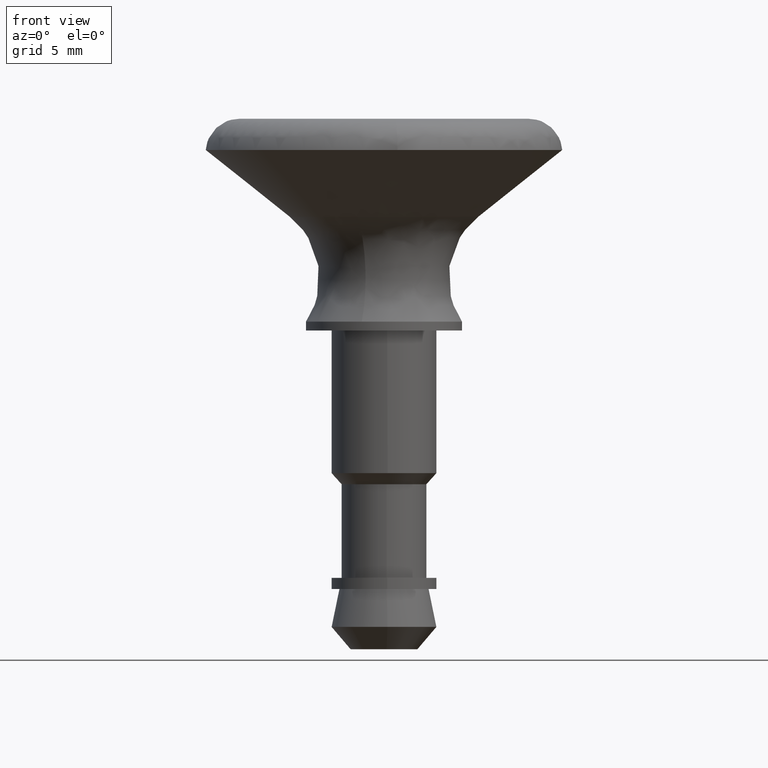
[diagram: clean part render]
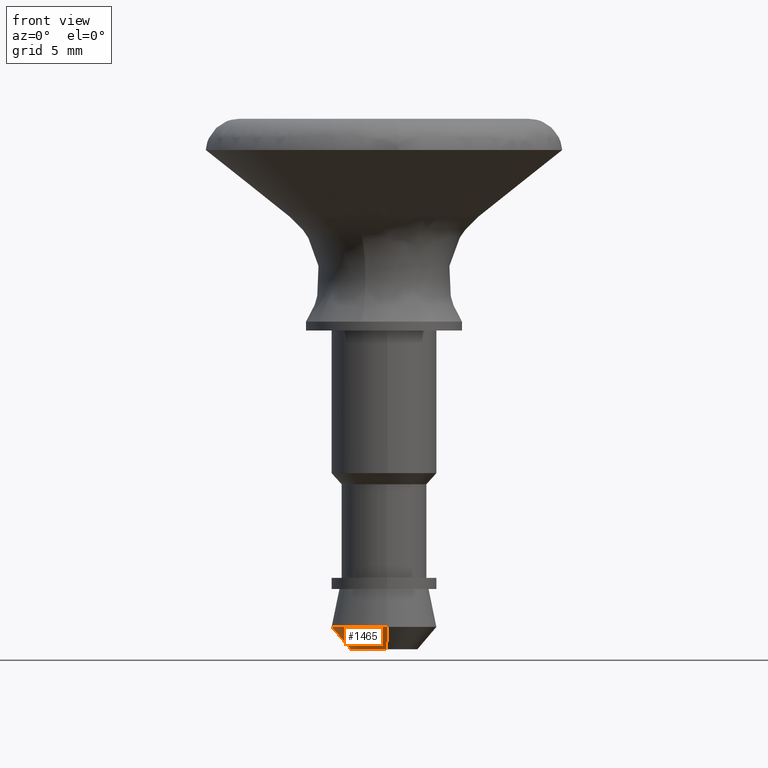
[diagram: same view with one face highlighted and labeled with its STEP entity id]
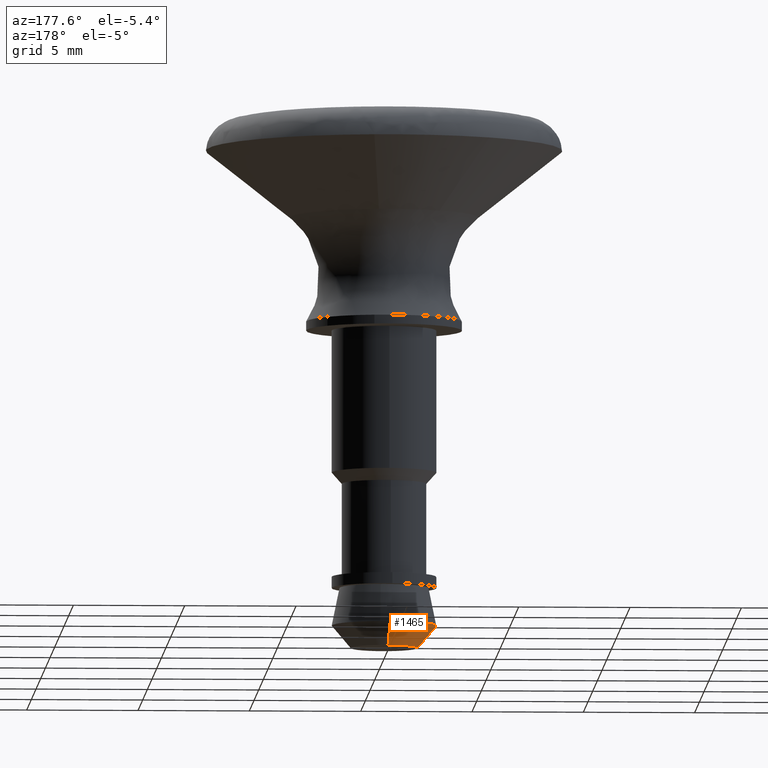
[diagram: same view with one face highlighted and labeled with its STEP entity id]
A machine part, front view. The second image highlights one B-rep face of the part: STEP entity #1465.
A second angle (auxiliary view) of the same face is appended — the face is thin or edge-on in the first view.
In plain terms, the highlighted face is a freeform B-spline surface patch.
Its self-contained STEP definition (entity closure, byte-faithful):
#1266=CARTESIAN_POINT('',(0.153691710792065,-2.344885596485963,-13.299922504303220));
#1267=VERTEX_POINT('',#1266);
#1315=CARTESIAN_POINT('',(-0.184377345202781,2.342736295777161,-13.299905292466701));
#1316=VERTEX_POINT('',#1315);
#1332=CARTESIAN_POINT('',(-2.349980501392760,0.0,-13.299905292479099));
#1333=VERTEX_POINT('',#1332);
#1334=CARTESIAN_POINT('',(-2.349980501392760,0.0,-13.299905292479099));
#1335=CARTESIAN_POINT('',(-2.349980501392760,2.172299630912261,-13.299905292479099));
#1336=CARTESIAN_POINT('',(-0.184377345202781,2.342736295777162,-13.299905292466697));
#1344=(BOUNDED_CURVE()B_SPLINE_CURVE(2,(#1334,#1335,#1336),.UNSPECIFIED.,.F.,.U.)B_SPLINE_CURVE_WITH_KNOTS((3,3),(0.0,0.236331300620385),.UNSPECIFIED.)CURVE()GEOMETRIC_REPRESENTATION_ITEM()RATIONAL_B_SPLINE_CURVE((1.0,0.723120658619703,0.969723356145975))REPRESENTATION_ITEM(''));
#1345=EDGE_CURVE('',#1333,#1316,#1344,.T.);
#1347=CARTESIAN_POINT('',(0.153691710792065,-2.344885596485963,-13.299922504303218));
#1348=CARTESIAN_POINT('',(0.076926197025439,-2.349918043768156,-13.299922240436128));
#1349=CARTESIAN_POINT('',(-0.000004025633629,-2.349919082009042,-13.299921958708129));
#1350=CARTESIAN_POINT('',(-2.349982448316865,-2.349950797030742,-13.299913352796061));
#1351=CARTESIAN_POINT('',(-2.349980501392760,0.0,-13.299905292479099));
#1359=(BOUNDED_CURVE()B_SPLINE_CURVE(2,(#1347,#1348,#1349,#1350,#1351),.UNSPECIFIED.,.F.,.U.)B_SPLINE_CURVE_WITH_KNOTS((3,2,3),(0.738580720874970,0.750000000000000,1.0),.UNSPECIFIED.)CURVE()GEOMETRIC_REPRESENTATION_ITEM()RATIONAL_B_SPLINE_CURVE((0.974465148865465,0.986621482322163,1.0,0.707106781186548,1.0))REPRESENTATION_ITEM(''));
#1360=EDGE_CURVE('',#1267,#1333,#1359,.T.);
#1399=CARTESIAN_POINT('',(-0.116013383996317,1.474089809193640,-14.325002367688031));
#1400=CARTESIAN_POINT('',(-1.590103193189956,1.358076425197324,-14.325002367688022));
#1401=CARTESIAN_POINT('',(-1.474089809193640,-0.116013383996317,-14.325002367688031));
#1402=CARTESIAN_POINT('',(-1.358076425197324,-1.590103193189956,-14.325002367688022));
#1403=CARTESIAN_POINT('',(0.116013383996317,-1.474089809193640,-14.325002367688031));
#1404=CARTESIAN_POINT('',(-0.186086444145372,2.364452457937809,-13.274277865598870));
#1405=CARTESIAN_POINT('',(-2.550538902083181,2.178366013792437,-13.274277865598874));
#1406=CARTESIAN_POINT('',(-2.364452457937809,-0.186086444145372,-13.274277865598870));
#1407=CARTESIAN_POINT('',(-2.178366013792437,-2.550538902083181,-13.274277865598874));
#1408=CARTESIAN_POINT('',(0.186086444145372,-2.364452457937809,-13.274277865598870));
#1416=(BOUNDED_SURFACE()B_SPLINE_SURFACE(2,1,((#1399,#1404),(#1400,#1405),(#1401,#1406),(#1402,#1407),(#1403,#1408)),.UNSPECIFIED.,.F.,.F.,.U.)B_SPLINE_SURFACE_WITH_KNOTS((3,2,3),(2,2),(0.0,3.929666954417388,7.859333908834776),(0.0,1.0),.UNSPECIFIED.)GEOMETRIC_REPRESENTATION_ITEM()RATIONAL_B_SPLINE_SURFACE(((1.0,1.0),(0.707106781186548,0.707106781186548),(1.0,1.0),(0.707106781186548,0.707106781186548),(1.0,1.0)))REPRESENTATION_ITEM('')SURFACE());
#1417=ORIENTED_EDGE('',*,*,#1345,.T.);
#1418=CARTESIAN_POINT('',(-0.117680797756952,1.495276308869640,-14.299999999989209));
#1419=VERTEX_POINT('',#1418);
#1420=CARTESIAN_POINT('',(-0.117680797756952,1.495276308869640,-14.299999999989209));
#1421=CARTESIAN_POINT('',(-0.184377345202781,2.342736295777161,-13.299905292466701));
#1422=QUASI_UNIFORM_CURVE('',1,(#1420,#1421),.UNSPECIFIED.,.F.,.U.);
#1423=EDGE_CURVE('',#1419,#1316,#1422,.T.);
#1424=ORIENTED_EDGE('',*,*,#1423,.F.);
#1425=CARTESIAN_POINT('',(-1.499900000000000,0.0,-14.300000000000001));
#1426=VERTEX_POINT('',#1425);
#1427=CARTESIAN_POINT('',(-1.499900000000000,0.0,-14.300000000000001));
#1428=CARTESIAN_POINT('',(-1.499900000000000,1.386493298300420,-14.300000000000006));
#1429=CARTESIAN_POINT('',(-0.117680797756952,1.495276308869640,-14.299999999989209));
#1437=(BOUNDED_CURVE()B_SPLINE_CURVE(2,(#1427,#1428,#1429),.UNSPECIFIED.,.F.,.U.)B_SPLINE_CURVE_WITH_KNOTS((3,3),(0.0,0.236331300615791),.UNSPECIFIED.)CURVE()GEOMETRIC_REPRESENTATION_ITEM()RATIONAL_B_SPLINE_CURVE((1.0,0.723120658625085,0.969723356136388))REPRESENTATION_ITEM(''));
#1438=EDGE_CURVE('',#1426,#1419,#1437,.T.);
#1439=ORIENTED_EDGE('',*,*,#1438,.F.);
#1440=CARTESIAN_POINT('',(0.117680797756952,-1.495276308869640,-14.299999999989209));
#1441=VERTEX_POINT('',#1440);
#1442=CARTESIAN_POINT('',(0.117680797756952,-1.495276308869640,-14.299999999989211));
#1443=CARTESIAN_POINT('',(0.058931231575184,-1.499899999999999,-14.299999999999997));
#1444=CARTESIAN_POINT('',(0.0,-1.499900000000000,-14.300000000000001));
#1445=CARTESIAN_POINT('',(-1.499899999999999,-1.499899999999999,-14.300000000000001));
#1446=CARTESIAN_POINT('',(-1.499900000000000,0.0,-14.300000000000001));
#1454=(BOUNDED_CURVE()B_SPLINE_CURVE(2,(#1442,#1443,#1444,#1445,#1446),.UNSPECIFIED.,.F.,.U.)B_SPLINE_CURVE_WITH_KNOTS((3,2,3),(0.736331300615791,0.750000000000000,1.0),.UNSPECIFIED.)CURVE()GEOMETRIC_REPRESENTATION_ITEM()RATIONAL_B_SPLINE_CURVE((0.969723356136388,0.983986122561462,1.0,0.707106781186547,1.0))REPRESENTATION_ITEM(''));
#1455=EDGE_CURVE('',#1441,#1426,#1454,.T.);
#1456=ORIENTED_EDGE('',*,*,#1455,.F.);
#1457=CARTESIAN_POINT('',(0.117680797756952,-1.495276308869640,-14.299999999989209));
#1458=CARTESIAN_POINT('',(0.153691710792065,-2.344885596485963,-13.299922504303220));
#1459=QUASI_UNIFORM_CURVE('',1,(#1457,#1458),.UNSPECIFIED.,.F.,.U.);
#1460=EDGE_CURVE('',#1441,#1267,#1459,.T.);
#1461=ORIENTED_EDGE('',*,*,#1460,.T.);
#1462=ORIENTED_EDGE('',*,*,#1360,.T.);
#1463=EDGE_LOOP('',(#1417,#1424,#1439,#1456,#1461,#1462));
#1464=FACE_OUTER_BOUND('',#1463,.T.);
#1465=ADVANCED_FACE('',(#1464),#1416,.T.);